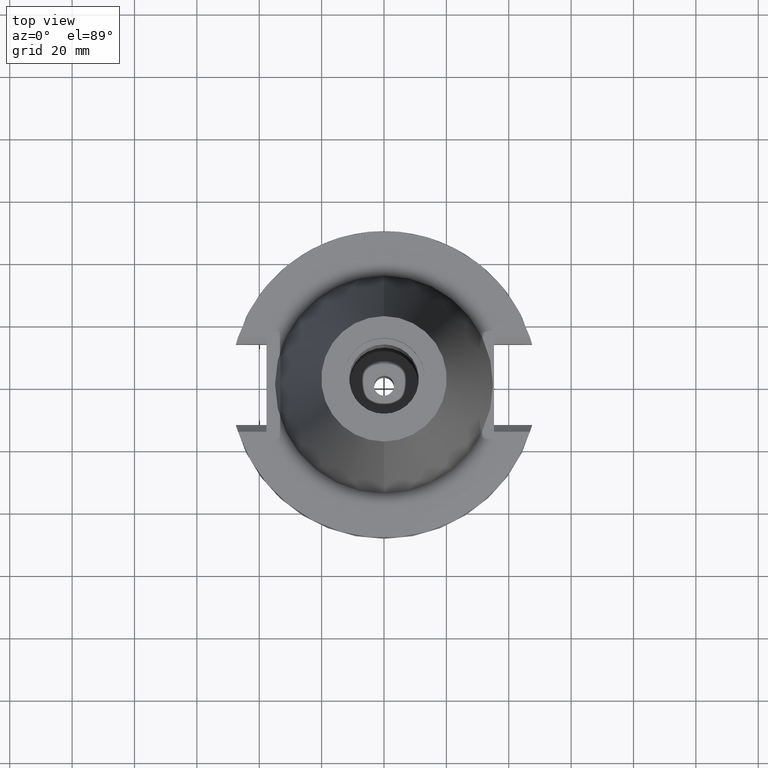
[diagram: clean part render]
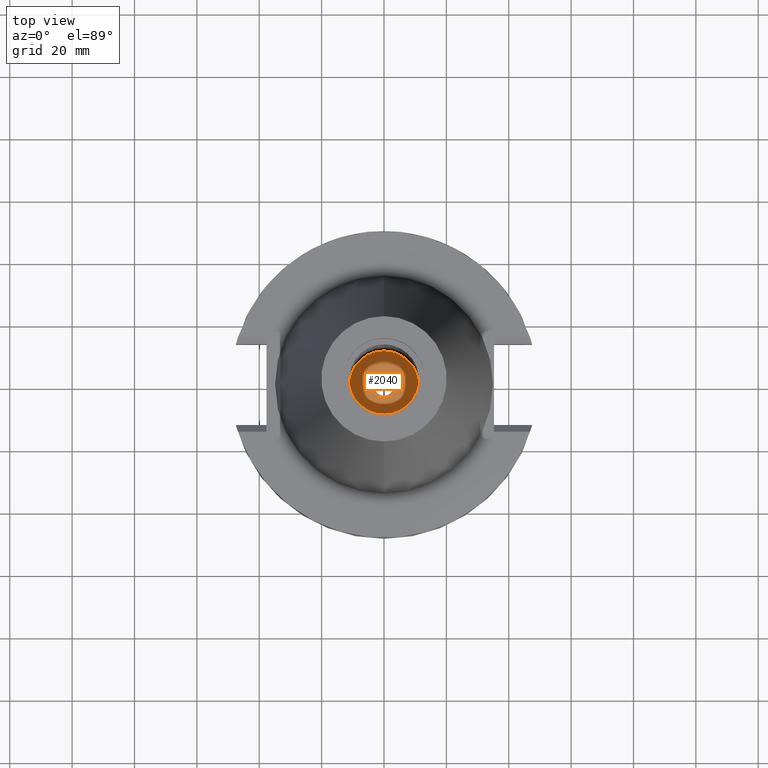
[diagram: same view with one face highlighted and labeled with its STEP entity id]
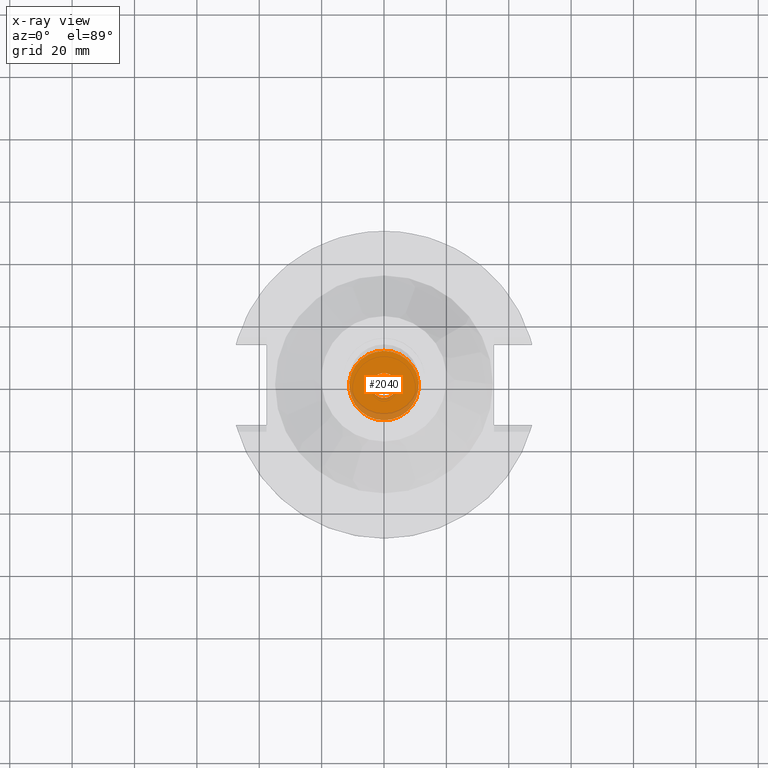
[diagram: x-ray of the same camera — body ghosted, the highlighted face saturated]
A machine part, top view. The second image highlights one B-rep face of the part: STEP entity #2040.
The next image is the same camera in x-ray: the body ghosted, the highlighted face saturated — about 14% of this face is hidden behind the body in this view.
In plain terms, the highlighted planar face has unit normal (0, 0, -1).
Its self-contained STEP definition (entity closure, byte-faithful):
#14 = DIRECTION ( 'NONE',  ( 0.0000000000000000000, -1.000000000000000000, 0.0000000000000000000 ) ) ;
#61 = VERTEX_POINT ( 'NONE', #1815 ) ;
#149 = ORIENTED_EDGE ( 'NONE', *, *, #2924, .F. ) ;
#197 = CARTESIAN_POINT ( 'NONE',  ( 0.0000000000000000000, 0.0000000000000000000, -23.40000000000000213 ) ) ;
#320 = ORIENTED_EDGE ( 'NONE', *, *, #1784, .F. ) ;
#379 = CARTESIAN_POINT ( 'NONE',  ( 0.0000000000000000000, -4.000000000000000000, -23.40000000000000213 ) ) ;
#590 = CARTESIAN_POINT ( 'NONE',  ( 0.0000000000000000000, 2.580636967502999935E-14, -23.40000000000000213 ) ) ;
#672 = DIRECTION ( 'NONE',  ( 0.0000000000000000000, 0.0000000000000000000, 1.000000000000000000 ) ) ;
#719 = VERTEX_POINT ( 'NONE', #3139 ) ;
#770 = CIRCLE ( 'NONE', #1666, 11.15000000000000036 ) ;
#835 = CIRCLE ( 'NONE', #1848, 4.000000000000000000 ) ;
#840 = EDGE_CURVE ( 'NONE', #719, #1090, #835, .T. ) ;
#866 = AXIS2_PLACEMENT_3D ( 'NONE', #2114, #2470, #2163 ) ;
#1090 = VERTEX_POINT ( 'NONE', #379 ) ;
#1207 = DIRECTION ( 'NONE',  ( 0.0000000000000000000, 0.0000000000000000000, -1.000000000000000000 ) ) ;
#1264 = ORIENTED_EDGE ( 'NONE', *, *, #840, .F. ) ;
#1388 = DIRECTION ( 'NONE',  ( 0.0000000000000000000, 0.0000000000000000000, -1.000000000000000000 ) ) ;
#1479 = PLANE ( 'NONE',  #2305 ) ;
#1543 = AXIS2_PLACEMENT_3D ( 'NONE', #590, #1388, #2334 ) ;
#1666 = AXIS2_PLACEMENT_3D ( 'NONE', #2264, #3315, #14 ) ;
#1691 = DIRECTION ( 'NONE',  ( 0.0000000000000000000, 1.000000000000000000, 0.0000000000000000000 ) ) ;
#1784 = EDGE_CURVE ( 'NONE', #61, #3285, #3160, .T. ) ;
#1815 = CARTESIAN_POINT ( 'NONE',  ( 0.0000000000000000000, 11.15000000000000036, -23.40000000000000213 ) ) ;
#1848 = AXIS2_PLACEMENT_3D ( 'NONE', #2962, #672, #1691 ) ;
#2035 = ORIENTED_EDGE ( 'NONE', *, *, #2081, .F. ) ;
#2040 = ADVANCED_FACE ( 'NONE', ( #2720, #2952 ), #1479, .F. ) ;
#2081 = EDGE_CURVE ( 'NONE', #3285, #61, #770, .T. ) ;
#2114 = CARTESIAN_POINT ( 'NONE',  ( 0.0000000000000000000, 2.580636967502999935E-14, -23.40000000000000213 ) ) ;
#2163 = DIRECTION ( 'NONE',  ( 0.0000000000000000000, -1.000000000000000000, 0.0000000000000000000 ) ) ;
#2232 = DIRECTION ( 'NONE',  ( 0.0000000000000000000, -1.000000000000000000, 0.0000000000000000000 ) ) ;
#2264 = CARTESIAN_POINT ( 'NONE',  ( 0.0000000000000000000, 2.580636967502999935E-14, -23.40000000000000213 ) ) ;
#2305 = AXIS2_PLACEMENT_3D ( 'NONE', #197, #1207, #2232 ) ;
#2334 = DIRECTION ( 'NONE',  ( 0.0000000000000000000, 1.000000000000000000, 0.0000000000000000000 ) ) ;
#2406 = CIRCLE ( 'NONE', #866, 4.000000000000000000 ) ;
#2470 = DIRECTION ( 'NONE',  ( 0.0000000000000000000, 0.0000000000000000000, 1.000000000000000000 ) ) ;
#2634 = EDGE_LOOP ( 'NONE', ( #320, #2035 ) ) ;
#2720 = FACE_OUTER_BOUND ( 'NONE', #2634, .T. ) ;
#2924 = EDGE_CURVE ( 'NONE', #1090, #719, #2406, .T. ) ;
#2952 = FACE_BOUND ( 'NONE', #3172, .T. ) ;
#2962 = CARTESIAN_POINT ( 'NONE',  ( 0.0000000000000000000, 2.580636967502999935E-14, -23.40000000000000213 ) ) ;
#3139 = CARTESIAN_POINT ( 'NONE',  ( 0.0000000000000000000, 4.000000000000000000, -23.40000000000000213 ) ) ;
#3160 = CIRCLE ( 'NONE', #1543, 11.15000000000000036 ) ;
#3172 = EDGE_LOOP ( 'NONE', ( #1264, #149 ) ) ;
#3285 = VERTEX_POINT ( 'NONE', #3288 ) ;
#3288 = CARTESIAN_POINT ( 'NONE',  ( 0.0000000000000000000, -11.15000000000000036, -23.40000000000000213 ) ) ;
#3315 = DIRECTION ( 'NONE',  ( 0.0000000000000000000, 0.0000000000000000000, -1.000000000000000000 ) ) ;